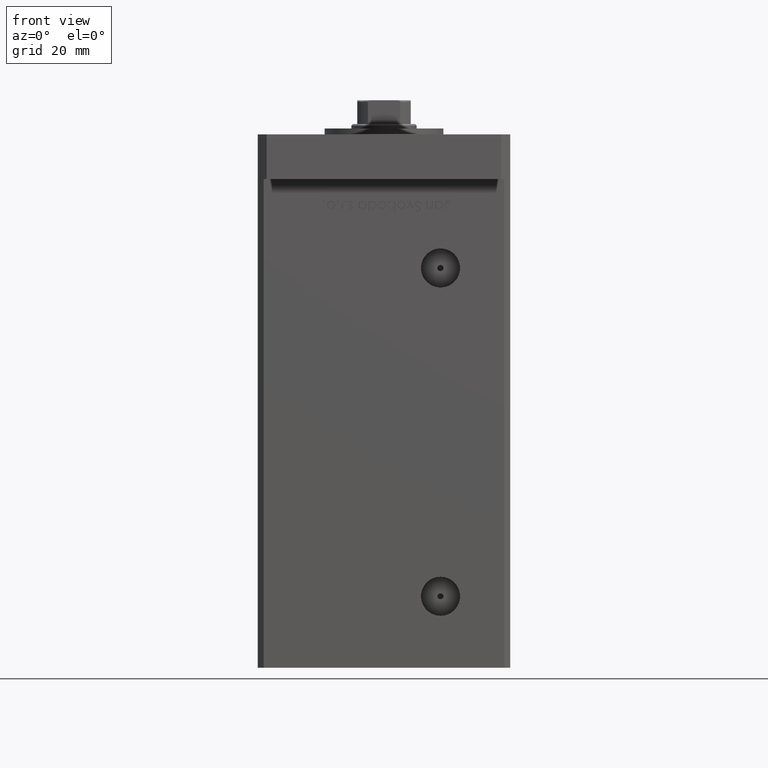
[diagram: clean part render]
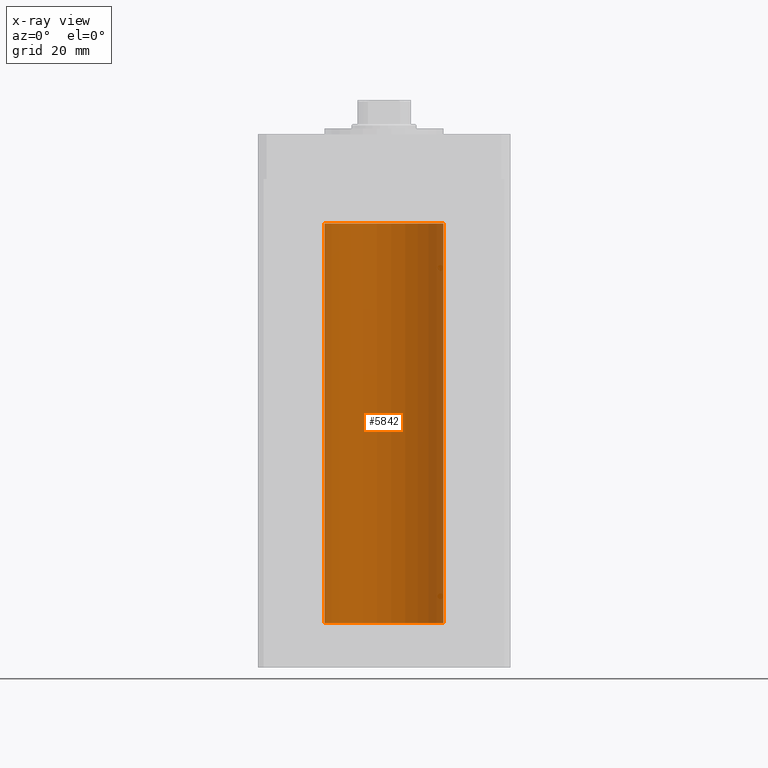
[diagram: x-ray — body ghosted, one internal face saturated and labeled with its STEP entity id]
A machine part, front view, then the same camera in x-ray: the body is ghosted and one INTERNAL B-rep face — a face not visible from any outside direction — is saturated and labeled: STEP entity #5842.
In plain terms, the highlighted cylindrical surface (partial cylindrical patch) has radius 20 mm, axis along (-0, -0, -1).
Its self-contained STEP definition (entity closure, byte-faithful):
#75 = LINE ( 'NONE', #17890, #52837 ) ;
#635 = DIRECTION ( 'NONE',  ( -0.000000000000000000, 0.000000000000000000, 1.000000000000000000 ) ) ;
#659 = CARTESIAN_POINT ( 'NONE',  ( -20.00000000000000000, 0.000000000000000000, 0.000000000000000000 ) ) ;
#1273 = VECTOR ( 'NONE', #13217, 1000.000000000000000 ) ;
#1291 = VERTEX_POINT ( 'NONE', #37684 ) ;
#2168 = CIRCLE ( 'NONE', #3007, 20.00000000000000000 ) ;
#3007 = AXIS2_PLACEMENT_3D ( 'NONE', #41457, #37655, #20835 ) ;
#5842 = ADVANCED_FACE ( 'NONE', ( #30464 ), #46754, .F. ) ;
#6461 = AXIS2_PLACEMENT_3D ( 'NONE', #17438, #635, #33978 ) ;
#9866 = CARTESIAN_POINT ( 'NONE',  ( 0.000000000000000000, 0.000000000000000000, 134.5000000000000000 ) ) ;
#9946 = ORIENTED_EDGE ( 'NONE', *, *, #23902, .F. ) ;
#13217 = DIRECTION ( 'NONE',  ( -0.000000000000000000, -0.000000000000000000, -1.000000000000000000 ) ) ;
#16363 = DIRECTION ( 'NONE',  ( -0.000000000000000000, -0.000000000000000000, -1.000000000000000000 ) ) ;
#17438 = CARTESIAN_POINT ( 'NONE',  ( 0.000000000000000000, 0.000000000000000000, 134.5000000000000000 ) ) ;
#17543 = LINE ( 'NONE', #34087, #1273 ) ;
#17721 = CIRCLE ( 'NONE', #6461, 20.00000000000000000 ) ;
#17890 = CARTESIAN_POINT ( 'NONE',  ( 20.00000000000000000, 2.449293598294706513E-15, 134.5000000000000000 ) ) ;
#20835 = DIRECTION ( 'NONE',  ( 1.000000000000000000, 0.000000000000000000, 0.000000000000000000 ) ) ;
#23902 = EDGE_CURVE ( 'NONE', #49868, #51479, #75, .T. ) ;
#25911 = ORIENTED_EDGE ( 'NONE', *, *, #36621, .T. ) ;
#25936 = CARTESIAN_POINT ( 'NONE',  ( 20.00000000000000000, 2.449293598294706513E-15, 134.5000000000000000 ) ) ;
#29796 = AXIS2_PLACEMENT_3D ( 'NONE', #9866, #42956, #38329 ) ;
#30464 = FACE_OUTER_BOUND ( 'NONE', #32729, .T. ) ;
#30820 = ORIENTED_EDGE ( 'NONE', *, *, #41035, .F. ) ;
#32729 = EDGE_LOOP ( 'NONE', ( #9946, #42177, #25911, #30820 ) ) ;
#33978 = DIRECTION ( 'NONE',  ( 1.000000000000000000, 0.000000000000000000, 0.000000000000000000 ) ) ;
#34087 = CARTESIAN_POINT ( 'NONE',  ( -20.00000000000000000, 0.000000000000000000, 134.5000000000000000 ) ) ;
#36621 = EDGE_CURVE ( 'NONE', #1291, #44160, #17543, .T. ) ;
#37655 = DIRECTION ( 'NONE',  ( -0.000000000000000000, 0.000000000000000000, 1.000000000000000000 ) ) ;
#37684 = CARTESIAN_POINT ( 'NONE',  ( -20.00000000000000000, 0.000000000000000000, 134.5000000000000000 ) ) ;
#38329 = DIRECTION ( 'NONE',  ( -1.000000000000000000, 0.000000000000000000, 0.000000000000000000 ) ) ;
#39391 = EDGE_CURVE ( 'NONE', #49868, #1291, #17721, .T. ) ;
#41035 = EDGE_CURVE ( 'NONE', #51479, #44160, #2168, .T. ) ;
#41457 = CARTESIAN_POINT ( 'NONE',  ( 0.000000000000000000, 0.000000000000000000, 0.000000000000000000 ) ) ;
#42177 = ORIENTED_EDGE ( 'NONE', *, *, #39391, .T. ) ;
#42956 = DIRECTION ( 'NONE',  ( -0.000000000000000000, -0.000000000000000000, -1.000000000000000000 ) ) ;
#44160 = VERTEX_POINT ( 'NONE', #659 ) ;
#46754 = CYLINDRICAL_SURFACE ( 'NONE', #29796, 20.00000000000000000 ) ;
#47562 = CARTESIAN_POINT ( 'NONE',  ( 20.00000000000000000, 2.449293598294706513E-15, 0.000000000000000000 ) ) ;
#49868 = VERTEX_POINT ( 'NONE', #25936 ) ;
#51479 = VERTEX_POINT ( 'NONE', #47562 ) ;
#52837 = VECTOR ( 'NONE', #16363, 1000.000000000000000 ) ;